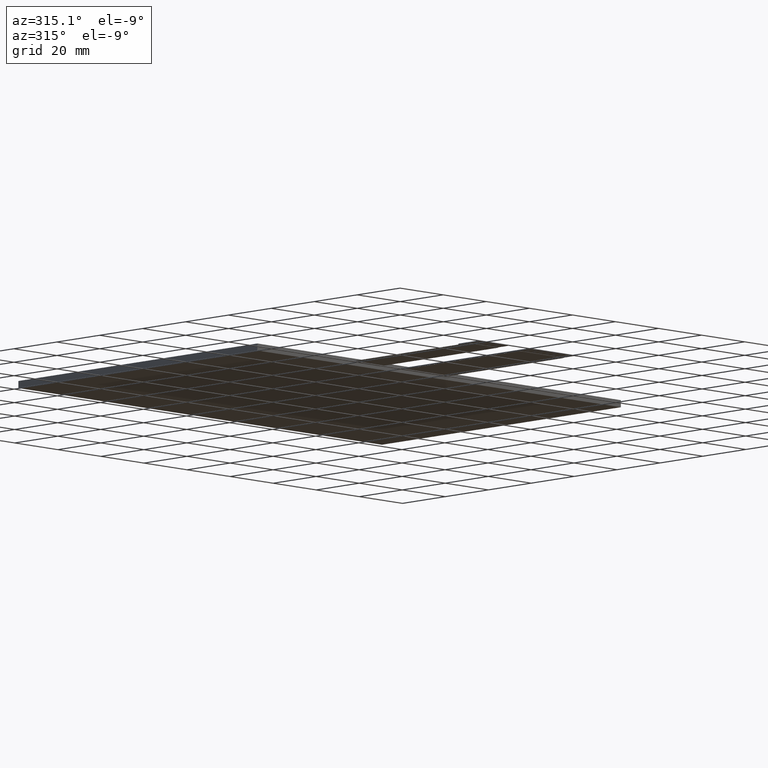
[diagram: clean part render]
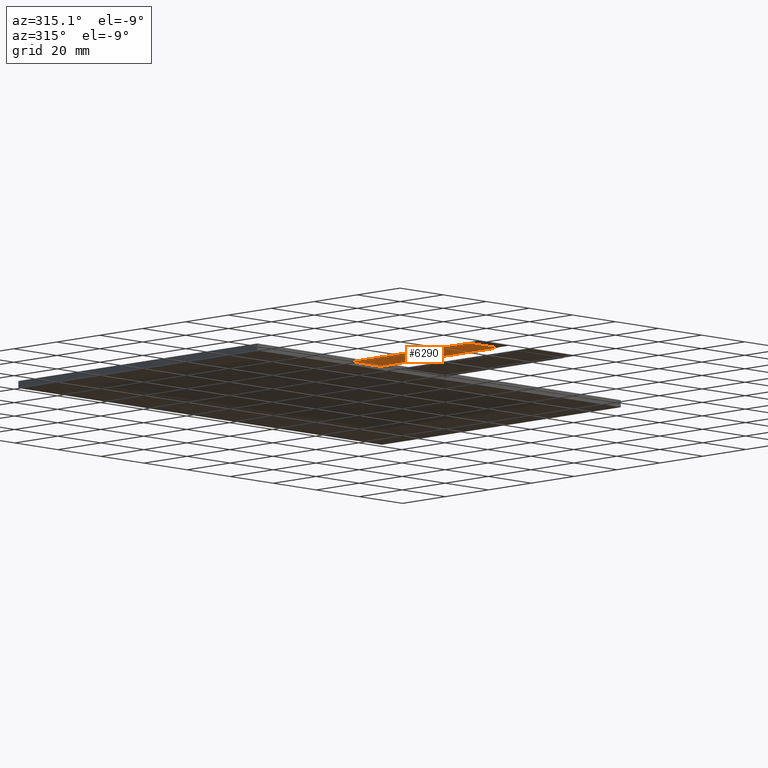
[diagram: same view with one face highlighted and labeled with its STEP entity id]
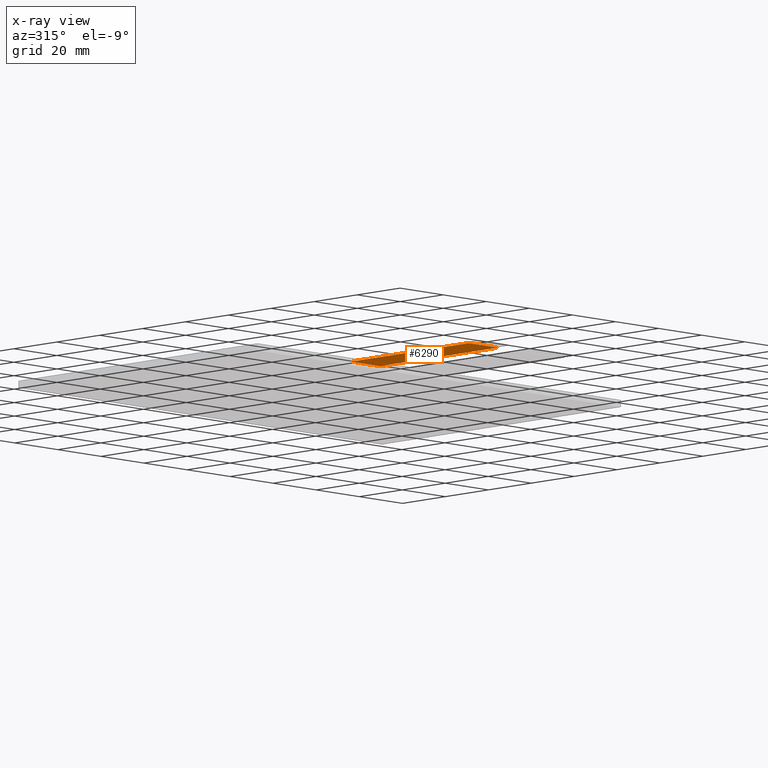
[diagram: x-ray of the same camera — body ghosted, the highlighted face saturated]
A machine part, auxiliary view. The second image highlights one B-rep face of the part: STEP entity #6290.
The next image is the same camera in x-ray: the body ghosted, the highlighted face saturated — about 0% of this face is hidden behind the body in this view.
In plain terms, the highlighted planar face has unit normal (0, 0, -1).
Its self-contained STEP definition (entity closure, byte-faithful):
#352=PLANE('',#6620);
#654=FACE_OUTER_BOUND('',#956,.T.);
#956=EDGE_LOOP('',(#5917,#5918,#5919,#5920));
#1092=LINE('',#8381,#1972);
#1800=LINE('',#9805,#2680);
#1805=LINE('',#9815,#2685);
#1820=LINE('',#9845,#2700);
#1972=VECTOR('',#6772,10.);
#2680=VECTOR('',#8028,10.);
#2685=VECTOR('',#8035,10.);
#2700=VECTOR('',#8070,10.);
#2860=VERTEX_POINT('',#8378);
#2861=VERTEX_POINT('',#8380);
#3303=VERTEX_POINT('',#9803);
#3307=VERTEX_POINT('',#9813);
#3456=EDGE_CURVE('',#2861,#2860,#1092,.T.);
#4168=EDGE_CURVE('',#2860,#3303,#1800,.T.);
#4173=EDGE_CURVE('',#3303,#3307,#1805,.T.);
#4188=EDGE_CURVE('',#2861,#3307,#1820,.T.);
#5917=ORIENTED_EDGE('',*,*,#4168,.T.);
#5918=ORIENTED_EDGE('',*,*,#4173,.T.);
#5919=ORIENTED_EDGE('',*,*,#4188,.F.);
#5920=ORIENTED_EDGE('',*,*,#3456,.T.);
#6290=ADVANCED_FACE('',(#654),#352,.T.);
#6620=AXIS2_PLACEMENT_3D('',#9844,#8068,#8069);
#6772=DIRECTION('',(3.70074341541719E-16,-1.,0.));
#8028=DIRECTION('',(-1.,0.,0.));
#8035=DIRECTION('',(-5.9211894646675E-16,1.,0.));
#8068=DIRECTION('center_axis',(0.,0.,-1.));
#8069=DIRECTION('ref_axis',(-1.,0.,0.));
#8070=DIRECTION('',(-1.,-1.05234409917076E-16,0.));
#8378=CARTESIAN_POINT('',(-27.4999999999999,-112.72,-1.21));
#8380=CARTESIAN_POINT('',(-27.4999999999999,-57.72,-1.21));
#8381=CARTESIAN_POINT('',(-27.4999999999999,-117.72,-1.21));
#9803=CARTESIAN_POINT('',(-41.,-112.72,-1.21));
#9805=CARTESIAN_POINT('',(-30.875,-112.72,-1.21));
#9813=CARTESIAN_POINT('',(-41.,-57.72,-1.21));
#9815=CARTESIAN_POINT('',(-41.,-57.72,-1.21));
#9844=CARTESIAN_POINT('Origin',(-34.25,-87.72,-1.21));
#9845=CARTESIAN_POINT('',(25.025,-57.72,-1.21));